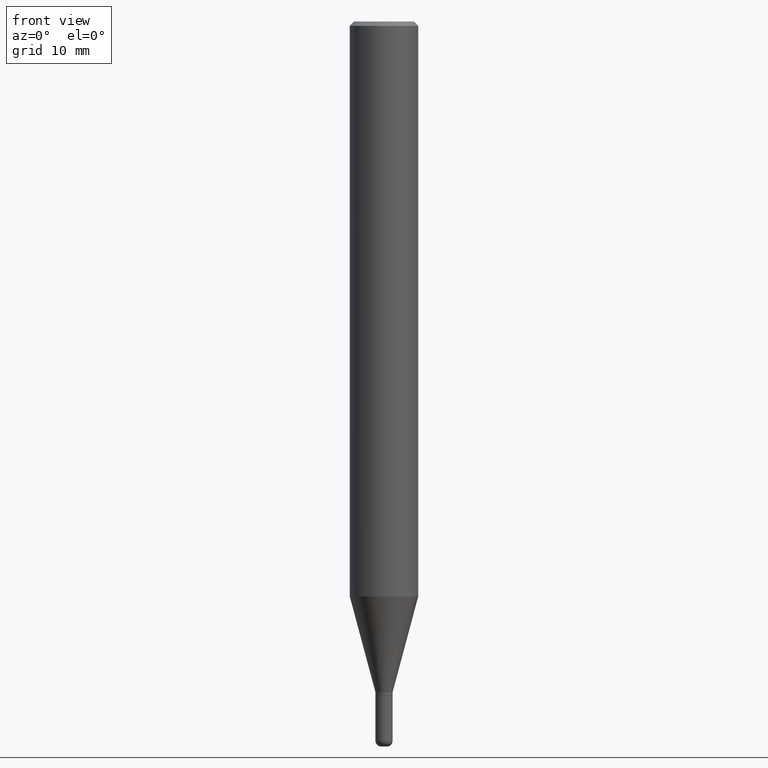
[diagram: clean part render]
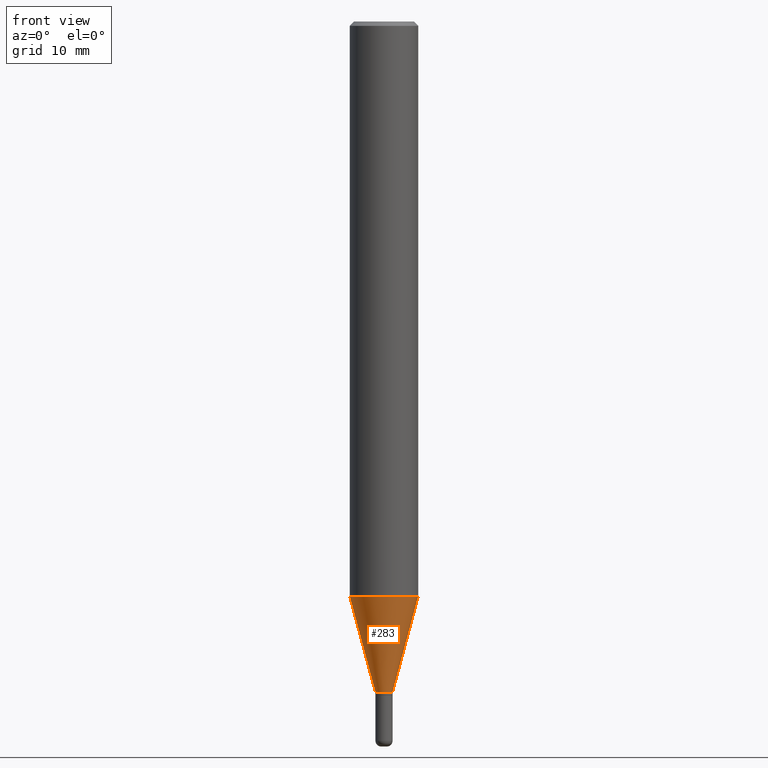
[diagram: same view with one face highlighted and labeled with its STEP entity id]
A machine part, front view. The second image highlights one B-rep face of the part: STEP entity #283.
In plain terms, the highlighted conical surface has half-angle 15 deg.
Its self-contained STEP definition (entity closure, byte-faithful):
#9 = VERTEX_POINT ( 'NONE', #513 ) ;
#12 = ORIENTED_EDGE ( 'NONE', *, *, #58, .T. ) ;
#26 = DIRECTION ( 'NONE',  ( 1.000000000000000000, -6.982962677686270655E-15, 0.000000000000000000 ) ) ;
#39 = DIRECTION ( 'NONE',  ( 1.000000000000000000, -6.982962677686270655E-15, 0.000000000000000000 ) ) ;
#58 = EDGE_CURVE ( 'NONE', #325, #153, #240, .T. ) ;
#75 = VERTEX_POINT ( 'NONE', #326 ) ;
#84 = CARTESIAN_POINT ( 'NONE',  ( -0.02954999999999996518, -7.865132662059317828E-15, -2.312800000000000189 ) ) ;
#85 = ORIENTED_EDGE ( 'NONE', *, *, #104, .F. ) ;
#95 = EDGE_LOOP ( 'NONE', ( #272, #12, #265, #85 ) ) ;
#104 = EDGE_CURVE ( 'NONE', #9, #75, #336, .T. ) ;
#109 = AXIS2_PLACEMENT_3D ( 'NONE', #116, #237, #26 ) ;
#110 = FACE_OUTER_BOUND ( 'NONE', #95, .T. ) ;
#114 = CARTESIAN_POINT ( 'NONE',  ( 0.02954999999999996518, -8.281444587602056007E-15, -2.312800000000000189 ) ) ;
#116 = CARTESIAN_POINT ( 'NONE',  ( 5.655880254944983613E-29, -8.075098040476427185E-15, -2.312800000000000189 ) ) ;
#124 = AXIS2_PLACEMENT_3D ( 'NONE', #368, #280, #39 ) ;
#136 = DIRECTION ( 'NONE',  ( -2.445468806185136597E-29, 3.491481338843145583E-15, 1.000000000000000000 ) ) ;
#153 = VERTEX_POINT ( 'NONE', #114 ) ;
#210 = CARTESIAN_POINT ( 'NONE',  ( 4.847718600032148277E-29, -6.921257382292565925E-15, -1.982326900989775709 ) ) ;
#226 = DIRECTION ( 'NONE',  ( 0.2588190451025206840, 1.565188264969626504E-15, 0.9659258262890682012 ) ) ;
#231 = CARTESIAN_POINT ( 'NONE',  ( -0.02954999999999996518, -6.973619536709603567E-15, -2.312800000000000189 ) ) ;
#237 = DIRECTION ( 'NONE',  ( -2.445468806185136597E-29, 3.491481338843145583E-15, 1.000000000000000000 ) ) ;
#240 = CIRCLE ( 'NONE', #124, 0.02954999999999996518 ) ;
#265 = ORIENTED_EDGE ( 'NONE', *, *, #304, .T. ) ;
#272 = ORIENTED_EDGE ( 'NONE', *, *, #438, .F. ) ;
#280 = DIRECTION ( 'NONE',  ( -2.445468806185136597E-29, 3.491481338843145583E-15, 1.000000000000000000 ) ) ;
#283 = ADVANCED_FACE ( 'NONE', ( #110 ), #421, .T. ) ;
#304 = EDGE_CURVE ( 'NONE', #153, #75, #425, .T. ) ;
#317 = DIRECTION ( 'NONE',  ( -0.2588190451025206840, 5.211531920934545520E-15, 0.9659258262890682012 ) ) ;
#325 = VERTEX_POINT ( 'NONE', #231 ) ;
#326 = CARTESIAN_POINT ( 'NONE',  ( 0.1180999999999999966, -7.745945274527314976E-15, -1.982326900989775709 ) ) ;
#330 = DIRECTION ( 'NONE',  ( 1.000000000000000000, -6.982962677686265133E-15, 0.000000000000000000 ) ) ;
#336 = CIRCLE ( 'NONE', #445, 0.1180999999999999966 ) ;
#348 = VECTOR ( 'NONE', #226, 39.37007874015748854 ) ;
#368 = CARTESIAN_POINT ( 'NONE',  ( 5.655880254944983613E-29, -8.075098040476427185E-15, -2.312800000000000189 ) ) ;
#386 = VECTOR ( 'NONE', #317, 39.37007874015748854 ) ;
#421 = CONICAL_SURFACE ( 'NONE', #109, 0.02954999999999996518, 0.2617993877991494078 ) ;
#425 = LINE ( 'NONE', #470, #348 ) ;
#438 = EDGE_CURVE ( 'NONE', #325, #9, #474, .T. ) ;
#445 = AXIS2_PLACEMENT_3D ( 'NONE', #210, #136, #330 ) ;
#470 = CARTESIAN_POINT ( 'NONE',  ( 0.02954999999999996518, -8.281444587602056007E-15, -2.312800000000000189 ) ) ;
#474 = LINE ( 'NONE', #84, #386 ) ;
#513 = CARTESIAN_POINT ( 'NONE',  ( -0.1180999999999999966, -6.082106411359887728E-15, -1.982326900989775709 ) ) ;